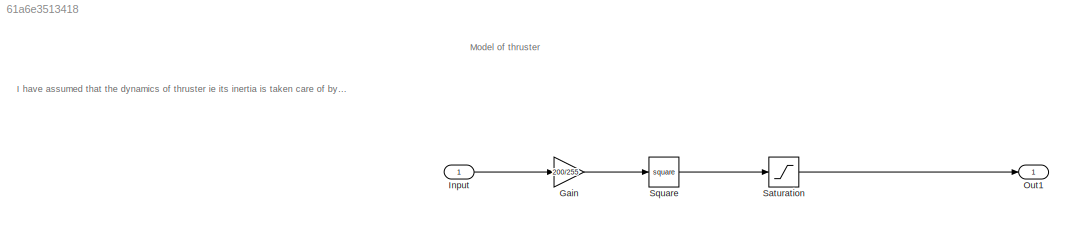
MODEL slx_61a6e3513418
KIND model
CONFIG AbsTol = auto
CONFIG EnableMultiTasking = off
CONFIG FixedStep = auto
CONFIG MaxStep = auto
CONFIG MinStep = auto
CONFIG RelTol = 1e-3
CONFIG SampleTimeConstraint = Unconstrained
CONFIG Solver = VariableStepAuto
CONFIG SolverName = VariableStepAuto
CONFIG StartTime = 0.0
CONFIG StopTime = 10.0
BLOCK [Gain] Gain
  Gain = 200/255
  OutDataTypeStr = Inherit: Inherit via internal rule
  ParamDataTypeStr = Inherit: Inherit via internal rule
  SaturateOnIntegerOverflow = off
BLOCK [Inport] Input
  IconDisplay = Port number
BLOCK [Outport] Out1
  IconDisplay = Port number
BLOCK [Saturate] Saturation
  InputPortMap = u0
  LowerLimit = -200
  Ports = [1, 1]
  UpperLimit = 200
BLOCK [Math] Square
  Operator = square
  Ports = [1, 1]
ANNOTATION (root): Model of thruster
ANNOTATION (root): I have assumed that the dynamics of thruster ie its inertia is taken care of by the ROC model itself. I am here just looking at the PWN mapping of the thruster
LINE Gain:1 -> Square:1
LINE Input:1 -> Gain:1
LINE Saturation:1 -> Out1:1
LINE Square:1 -> Saturation:1
